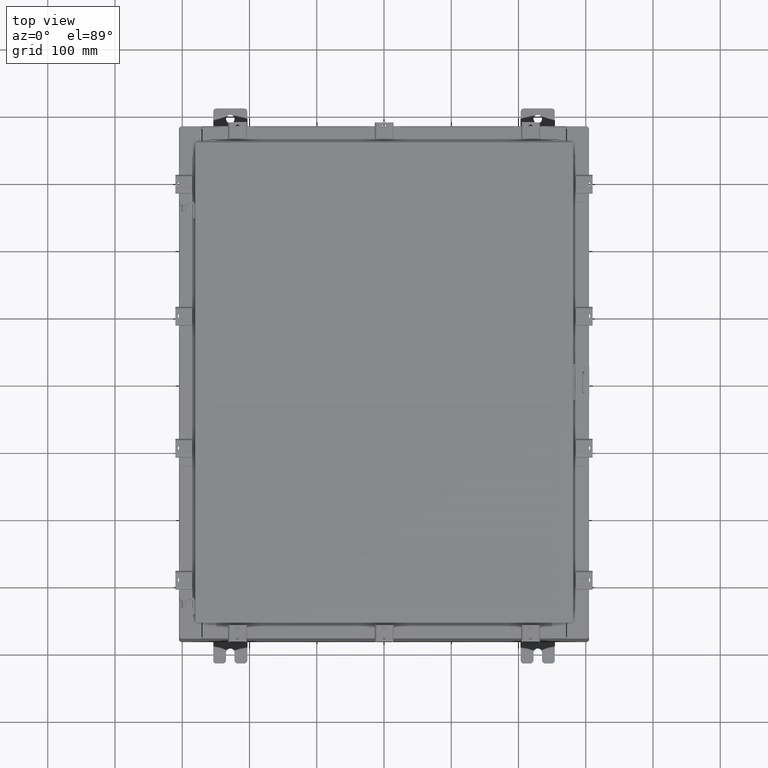
[diagram: clean part render]
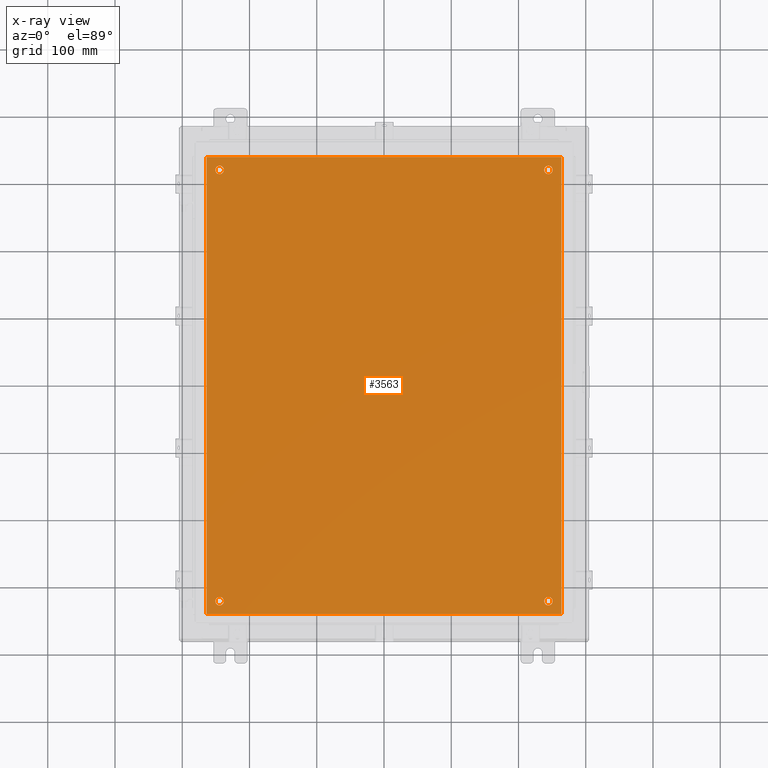
[diagram: x-ray — body ghosted, one internal face saturated and labeled with its STEP entity id]
A machine part, top view, then the same camera in x-ray: the body is ghosted and one INTERNAL B-rep face — a face not visible from any outside direction — is saturated and labeled: STEP entity #3563.
In plain terms, the highlighted planar face has unit normal (0, 0, -1).
Its self-contained STEP definition (entity closure, byte-faithful):
#63 = CIRCLE ( 'NONE', #15366, 0.2500000000000008900 ) ;
#276 = ORIENTED_EDGE ( 'NONE', *, *, #5546, .F. ) ;
#751 = EDGE_LOOP ( 'NONE', ( #5010, #13162 ) ) ;
#762 = VERTEX_POINT ( 'NONE', #11906 ) ;
#830 = VERTEX_POINT ( 'NONE', #4284 ) ;
#876 = AXIS2_PLACEMENT_3D ( 'NONE', #20545, #22139, #15593 ) ;
#927 = VERTEX_POINT ( 'NONE', #20101 ) ;
#2242 = ORIENTED_EDGE ( 'NONE', *, *, #9076, .F. ) ;
#2249 = ORIENTED_EDGE ( 'NONE', *, *, #15456, .T. ) ;
#2250 = DIRECTION ( 'NONE',  ( 1.000000000000000000, -0.0000000000000000000, -0.0000000000000000000 ) ) ;
#2280 = AXIS2_PLACEMENT_3D ( 'NONE', #8291, #20841, #10114 ) ;
#2690 = DIRECTION ( 'NONE',  ( -0.0000000000000000000, -0.0000000000000000000, 1.000000000000000000 ) ) ;
#2712 = DIRECTION ( 'NONE',  ( 0.0000000000000000000, 1.000000000000000000, 0.0000000000000000000 ) ) ;
#3022 = DIRECTION ( 'NONE',  ( -0.0000000000000000000, -0.0000000000000000000, 1.000000000000000000 ) ) ;
#3347 = DIRECTION ( 'NONE',  ( -0.0000000000000000000, -0.0000000000000000000, 1.000000000000000000 ) ) ;
#3563 = ADVANCED_FACE ( 'NONE', ( #14058, #9838, #4503, #22982, #18238 ), #9266, .T. ) ;
#3591 = EDGE_CURVE ( 'NONE', #927, #20020, #12920, .T. ) ;
#3743 = VECTOR ( 'NONE', #2250, 39.37007874015748100 ) ;
#4231 = VERTEX_POINT ( 'NONE', #20896 ) ;
#4284 = CARTESIAN_POINT ( 'NONE',  ( -10.38300000000000100, 13.38299999999999700, -0.1040000000000020100 ) ) ;
#4503 = FACE_BOUND ( 'NONE', #4969, .T. ) ;
#4719 = VECTOR ( 'NONE', #22606, 39.37007874015748100 ) ;
#4857 = CARTESIAN_POINT ( 'NONE',  ( 10.50000000000000400, 13.38299999999999900, -0.1040000000000009100 ) ) ;
#4969 = EDGE_LOOP ( 'NONE', ( #13365, #16211 ) ) ;
#4980 = VECTOR ( 'NONE', #2712, 39.37007874015748100 ) ;
#5010 = ORIENTED_EDGE ( 'NONE', *, *, #11883, .T. ) ;
#5362 = EDGE_CURVE ( 'NONE', #14136, #8469, #18431, .T. ) ;
#5489 = AXIS2_PLACEMENT_3D ( 'NONE', #14062, #3347, #15865 ) ;
#5546 = EDGE_CURVE ( 'NONE', #762, #9181, #19297, .T. ) ;
#5751 = DIRECTION ( 'NONE',  ( -0.0000000000000000000, -0.0000000000000000000, 1.000000000000000000 ) ) ;
#6148 = VERTEX_POINT ( 'NONE', #15024 ) ;
#6596 = CIRCLE ( 'NONE', #18435, 0.2500000000000008900 ) ;
#6821 = ORIENTED_EDGE ( 'NONE', *, *, #5362, .T. ) ;
#6997 = ORIENTED_EDGE ( 'NONE', *, *, #21763, .F. ) ;
#7120 = AXIS2_PLACEMENT_3D ( 'NONE', #18442, #14382, #17105 ) ;
#7192 = ORIENTED_EDGE ( 'NONE', *, *, #3591, .T. ) ;
#7404 = VERTEX_POINT ( 'NONE', #9964 ) ;
#7530 = CARTESIAN_POINT ( 'NONE',  ( -10.38300000000000100, -13.38299999999999900, -0.1040000000000009100 ) ) ;
#8039 = DIRECTION ( 'NONE',  ( 0.0000000000000000000, -1.000000000000000000, 0.0000000000000000000 ) ) ;
#8291 = CARTESIAN_POINT ( 'NONE',  ( 9.625000000000007100, 12.62500000000000000, -0.1039999999999999800 ) ) ;
#8469 = VERTEX_POINT ( 'NONE', #16334 ) ;
#9067 = VERTEX_POINT ( 'NONE', #7530 ) ;
#9076 = EDGE_CURVE ( 'NONE', #9067, #762, #13268, .T. ) ;
#9181 = VERTEX_POINT ( 'NONE', #15053 ) ;
#9266 = PLANE ( 'NONE',  #7120 ) ;
#9360 = EDGE_CURVE ( 'NONE', #20020, #927, #16607, .T. ) ;
#9562 = VECTOR ( 'NONE', #8039, 39.37007874015748100 ) ;
#9774 = DIRECTION ( 'NONE',  ( -0.0000000000000000000, -0.0000000000000000000, 1.000000000000000000 ) ) ;
#9838 = FACE_BOUND ( 'NONE', #15883, .T. ) ;
#9964 = CARTESIAN_POINT ( 'NONE',  ( 9.875000000000007100, 12.62500000000000000, -0.1039999999999999800 ) ) ;
#10114 = DIRECTION ( 'NONE',  ( -1.000000000000000000, 0.0000000000000000000, 0.0000000000000000000 ) ) ;
#10447 = CARTESIAN_POINT ( 'NONE',  ( 9.625000000000007100, -12.62500000000000000, -0.1039999999999999800 ) ) ;
#10893 = EDGE_CURVE ( 'NONE', #7404, #4231, #18527, .T. ) ;
#10899 = EDGE_CURVE ( 'NONE', #6148, #17938, #63, .T. ) ;
#10924 = EDGE_CURVE ( 'NONE', #830, #9067, #11277, .T. ) ;
#11277 = LINE ( 'NONE', #20578, #9562 ) ;
#11603 = CARTESIAN_POINT ( 'NONE',  ( -9.375000000000007100, -12.62500000000000000, -0.1039999999999999800 ) ) ;
#11883 = EDGE_CURVE ( 'NONE', #17938, #6148, #16539, .T. ) ;
#11906 = CARTESIAN_POINT ( 'NONE',  ( 10.38300000000000100, -13.38299999999999700, -0.1040000000000009100 ) ) ;
#12235 = DIRECTION ( 'NONE',  ( -1.000000000000000000, 0.0000000000000000000, 0.0000000000000000000 ) ) ;
#12598 = CARTESIAN_POINT ( 'NONE',  ( 9.875000000000007100, -12.62500000000000000, -0.1039999999999999800 ) ) ;
#12920 = CIRCLE ( 'NONE', #876, 0.2499999999999998100 ) ;
#13162 = ORIENTED_EDGE ( 'NONE', *, *, #10899, .T. ) ;
#13268 = LINE ( 'NONE', #14754, #3743 ) ;
#13365 = ORIENTED_EDGE ( 'NONE', *, *, #10893, .T. ) ;
#13385 = CARTESIAN_POINT ( 'NONE',  ( -9.625000000000007100, 12.62500000000000000, -0.1039999999999999800 ) ) ;
#13411 = CARTESIAN_POINT ( 'NONE',  ( 10.38300000000000100, -13.38299999999999700, -0.1040000000000009100 ) ) ;
#13728 = CARTESIAN_POINT ( 'NONE',  ( -9.625000000000007100, -12.62500000000000000, -0.1039999999999999800 ) ) ;
#14058 = FACE_BOUND ( 'NONE', #22903, .T. ) ;
#14062 = CARTESIAN_POINT ( 'NONE',  ( -9.625000000000007100, 12.62500000000000000, -0.1039999999999999800 ) ) ;
#14136 = VERTEX_POINT ( 'NONE', #11603 ) ;
#14185 = AXIS2_PLACEMENT_3D ( 'NONE', #20490, #9774, #22283 ) ;
#14263 = LINE ( 'NONE', #4857, #4719 ) ;
#14382 = DIRECTION ( 'NONE',  ( 0.0000000000000000000, 0.0000000000000000000, -1.000000000000000000 ) ) ;
#14754 = CARTESIAN_POINT ( 'NONE',  ( -10.50000000000000200, -13.38299999999999900, -0.1040000000000009100 ) ) ;
#15024 = CARTESIAN_POINT ( 'NONE',  ( -9.875000000000007100, 12.62500000000000000, -0.1039999999999999800 ) ) ;
#15053 = CARTESIAN_POINT ( 'NONE',  ( 10.38300000000000100, 13.38299999999999700, -0.1040000000000009100 ) ) ;
#15180 = DIRECTION ( 'NONE',  ( -1.000000000000000000, 0.0000000000000000000, 0.0000000000000000000 ) ) ;
#15203 = ORIENTED_EDGE ( 'NONE', *, *, #9360, .T. ) ;
#15366 = AXIS2_PLACEMENT_3D ( 'NONE', #13385, #2690, #15180 ) ;
#15418 = EDGE_LOOP ( 'NONE', ( #2242, #21484, #6997, #276 ) ) ;
#15456 = EDGE_CURVE ( 'NONE', #8469, #14136, #6596, .T. ) ;
#15541 = DIRECTION ( 'NONE',  ( -1.000000000000000000, 0.0000000000000000000, 0.0000000000000000000 ) ) ;
#15593 = DIRECTION ( 'NONE',  ( -1.000000000000000000, 0.0000000000000000000, 0.0000000000000000000 ) ) ;
#15865 = DIRECTION ( 'NONE',  ( -1.000000000000000000, 0.0000000000000000000, 0.0000000000000000000 ) ) ;
#15883 = EDGE_LOOP ( 'NONE', ( #15203, #7192 ) ) ;
#16211 = ORIENTED_EDGE ( 'NONE', *, *, #21711, .T. ) ;
#16334 = CARTESIAN_POINT ( 'NONE',  ( -9.875000000000007100, -12.62500000000000000, -0.1039999999999999800 ) ) ;
#16406 = AXIS2_PLACEMENT_3D ( 'NONE', #10447, #22919, #12235 ) ;
#16463 = CARTESIAN_POINT ( 'NONE',  ( -9.625000000000007100, -12.62500000000000000, -0.1039999999999999800 ) ) ;
#16539 = CIRCLE ( 'NONE', #5489, 0.2500000000000008900 ) ;
#16607 = CIRCLE ( 'NONE', #16406, 0.2499999999999998100 ) ;
#16652 = AXIS2_PLACEMENT_3D ( 'NONE', #16463, #5751, #18262 ) ;
#17105 = DIRECTION ( 'NONE',  ( -1.000000000000000000, 0.0000000000000000000, -0.0000000000000000000 ) ) ;
#17618 = CARTESIAN_POINT ( 'NONE',  ( -9.375000000000007100, 12.62500000000000000, -0.1039999999999999800 ) ) ;
#17938 = VERTEX_POINT ( 'NONE', #17618 ) ;
#18238 = FACE_OUTER_BOUND ( 'NONE', #15418, .T. ) ;
#18262 = DIRECTION ( 'NONE',  ( -1.000000000000000000, 0.0000000000000000000, 0.0000000000000000000 ) ) ;
#18431 = CIRCLE ( 'NONE', #16652, 0.2500000000000008900 ) ;
#18435 = AXIS2_PLACEMENT_3D ( 'NONE', #13728, #3022, #15541 ) ;
#18442 = CARTESIAN_POINT ( 'NONE',  ( 0.0000000000000000000, 0.0000000000000000000, -0.1039999999999999800 ) ) ;
#18527 = CIRCLE ( 'NONE', #14185, 0.2499999999999998100 ) ;
#19297 = LINE ( 'NONE', #13411, #4980 ) ;
#19597 = CIRCLE ( 'NONE', #2280, 0.2499999999999998100 ) ;
#20020 = VERTEX_POINT ( 'NONE', #12598 ) ;
#20101 = CARTESIAN_POINT ( 'NONE',  ( 9.375000000000007100, -12.62500000000000000, -0.1039999999999999800 ) ) ;
#20490 = CARTESIAN_POINT ( 'NONE',  ( 9.625000000000007100, 12.62500000000000000, -0.1039999999999999800 ) ) ;
#20545 = CARTESIAN_POINT ( 'NONE',  ( 9.625000000000007100, -12.62500000000000000, -0.1039999999999999800 ) ) ;
#20578 = CARTESIAN_POINT ( 'NONE',  ( -10.38300000000000100, 13.38299999999999700, -0.1040000000000020100 ) ) ;
#20841 = DIRECTION ( 'NONE',  ( -0.0000000000000000000, -0.0000000000000000000, 1.000000000000000000 ) ) ;
#20896 = CARTESIAN_POINT ( 'NONE',  ( 9.375000000000007100, 12.62500000000000000, -0.1039999999999999800 ) ) ;
#21484 = ORIENTED_EDGE ( 'NONE', *, *, #10924, .F. ) ;
#21711 = EDGE_CURVE ( 'NONE', #4231, #7404, #19597, .T. ) ;
#21763 = EDGE_CURVE ( 'NONE', #9181, #830, #14263, .T. ) ;
#22139 = DIRECTION ( 'NONE',  ( -0.0000000000000000000, -0.0000000000000000000, 1.000000000000000000 ) ) ;
#22283 = DIRECTION ( 'NONE',  ( -1.000000000000000000, 0.0000000000000000000, 0.0000000000000000000 ) ) ;
#22606 = DIRECTION ( 'NONE',  ( -1.000000000000000000, -0.0000000000000000000, -0.0000000000000000000 ) ) ;
#22903 = EDGE_LOOP ( 'NONE', ( #6821, #2249 ) ) ;
#22919 = DIRECTION ( 'NONE',  ( -0.0000000000000000000, -0.0000000000000000000, 1.000000000000000000 ) ) ;
#22982 = FACE_BOUND ( 'NONE', #751, .T. ) ;